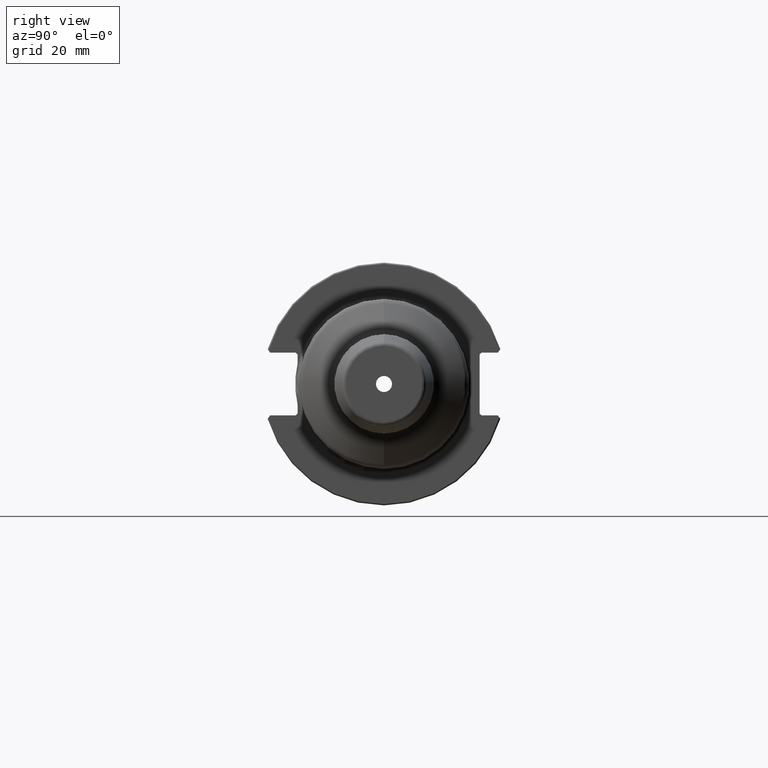
[diagram: clean part render]
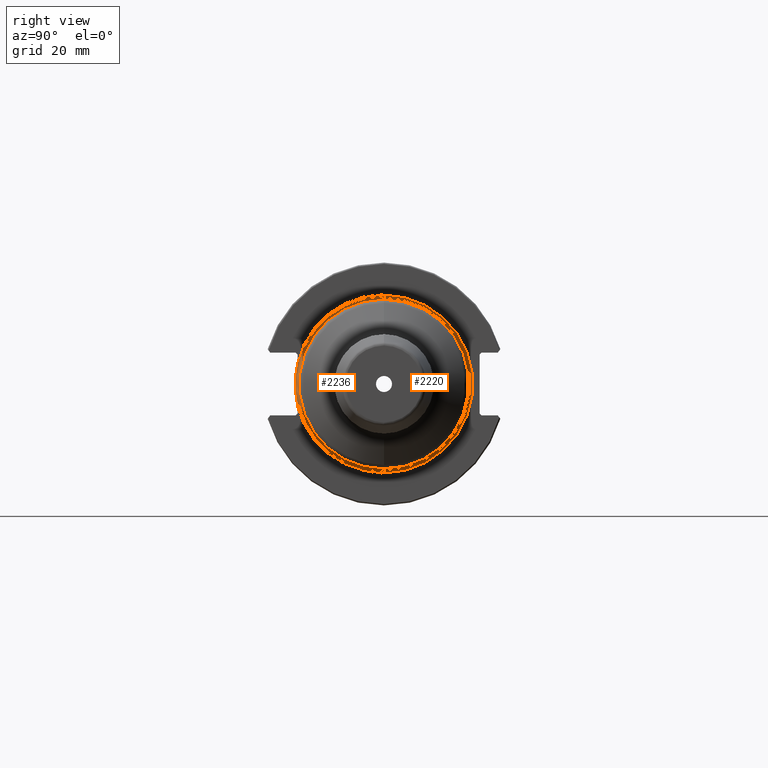
[diagram: same view with one multi-face feature highlighted, each face labeled with its STEP entity id]
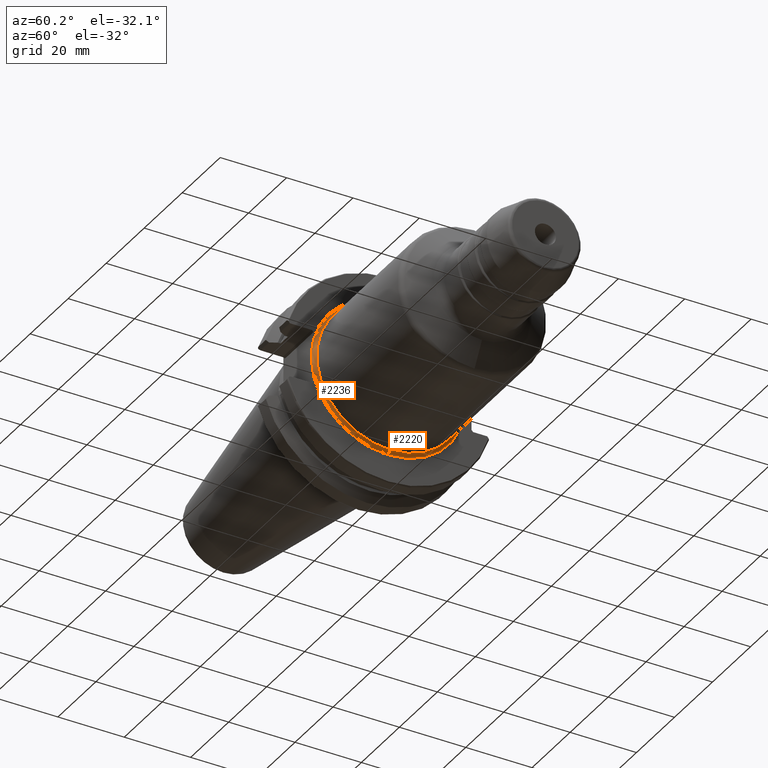
[diagram: same view with one multi-face feature highlighted, each face labeled with its STEP entity id]
A machine part, right view. The highlighted faces form ONE feature: a constant-radius fillet chain: 2 tangent blend faces with common blend radius 1 mm. The faces share edges in the B-rep.
A second angle (auxiliary view) of the same feature is appended — it is thin or edge-on in the first view.
Their STEP definitions:
[1] entity #2236 (Torus):
#207=CARTESIAN_POINT('',(1.9075E1,0.E0,0.E0));
#208=DIRECTION('',(1.E0,0.E0,0.E0));
#209=DIRECTION('',(0.E0,0.E0,1.E0));
#210=AXIS2_PLACEMENT_3D('',#207,#208,#209);
#212=CARTESIAN_POINT('',(1.9075E1,0.E0,0.E0));
#213=DIRECTION('',(1.E0,0.E0,0.E0));
#214=DIRECTION('',(0.E0,-9.730893433800E-1,-2.304281445491E-1));
#215=AXIS2_PLACEMENT_3D('',#212,#213,#214);
#222=CARTESIAN_POINT('',(2.0075E1,0.E0,2.3225E1));
#223=DIRECTION('',(0.E0,1.E0,0.E0));
#224=DIRECTION('',(0.E0,0.E0,-1.E0));
#225=AXIS2_PLACEMENT_3D('',#222,#223,#224);
#227=CARTESIAN_POINT('',(2.0075E1,0.E0,0.E0));
#228=DIRECTION('',(-1.E0,0.E0,0.E0));
#229=DIRECTION('',(0.E0,0.E0,-1.E0));
#230=AXIS2_PLACEMENT_3D('',#227,#228,#229);
#232=CARTESIAN_POINT('',(2.0075E1,0.E0,-2.3225E1));
#233=DIRECTION('',(0.E0,-1.E0,0.E0));
#234=DIRECTION('',(0.E0,0.E0,1.E0));
#235=AXIS2_PLACEMENT_3D('',#232,#233,#234);
#895=CARTESIAN_POINT('',(1.9075E1,0.E0,0.E0));
#896=DIRECTION('',(-1.E0,0.E0,0.E0));
#897=DIRECTION('',(0.E0,-9.730893433800E-1,-2.304281445491E-1));
#898=AXIS2_PLACEMENT_3D('',#895,#896,#897);
#1788=CARTESIAN_POINT('',(2.0075E1,0.E0,-2.2225E1));
#1789=VERTEX_POINT('',#1788);
#1846=CARTESIAN_POINT('',(2.0075E1,0.E0,2.2225E1));
#1847=VERTEX_POINT('',#1846);
#1848=CARTESIAN_POINT('',(1.9075E1,-2.26E1,5.351693657152E0));
#1849=CARTESIAN_POINT('',(1.9075E1,-2.26E1,-5.351693657152E0));
#1850=VERTEX_POINT('',#1848);
#1851=VERTEX_POINT('',#1849);
#1852=CARTESIAN_POINT('',(1.9075E1,0.E0,-2.3225E1));
#1853=CARTESIAN_POINT('',(1.9075E1,0.E0,2.3225E1));
#1854=VERTEX_POINT('',#1852);
#1855=VERTEX_POINT('',#1853);
#2221=CARTESIAN_POINT('',(2.0075E1,0.E0,0.E0));
#2222=DIRECTION('',(1.E0,0.E0,0.E0));
#2223=DIRECTION('',(0.E0,0.E0,1.E0));
#2224=AXIS2_PLACEMENT_3D('',#2221,#2222,#2223);
#2225=TOROIDAL_SURFACE('',#2224,2.3225E1,1.E0);
#2226=ORIENTED_EDGE('',*,*,#2166,.F.);
#2227=ORIENTED_EDGE('',*,*,#2216,.F.);
#2229=ORIENTED_EDGE('',*,*,#2228,.F.);
#2230=ORIENTED_EDGE('',*,*,#2212,.T.);
#2231=ORIENTED_EDGE('',*,*,#2201,.F.);
#2233=ORIENTED_EDGE('',*,*,#2232,.T.);
#2234=EDGE_LOOP('',(#2226,#2227,#2229,#2230,#2231,#2233));
#2235=FACE_OUTER_BOUND('',#2234,.F.);
#2236=ADVANCED_FACE('',(#2235),#2225,.F.);
#211=CIRCLE('',#210,2.3225E1);
#216=CIRCLE('',#215,2.3225E1);
#226=CIRCLE('',#225,1.E0);
#231=CIRCLE('',#230,2.2225E1);
#236=CIRCLE('',#235,1.E0);
#899=CIRCLE('',#898,2.3225E1);
#2166=EDGE_CURVE('',#1855,#1850,#211,.T.);
#2201=EDGE_CURVE('',#1851,#1854,#216,.T.);
#2212=EDGE_CURVE('',#1789,#1854,#236,.T.);
#2216=EDGE_CURVE('',#1847,#1855,#226,.T.);
#2228=EDGE_CURVE('',#1789,#1847,#231,.T.);
#2232=EDGE_CURVE('',#1851,#1850,#899,.T.);
[2] entity #2220 (Torus):
#202=CARTESIAN_POINT('',(1.9075E1,0.E0,0.E0));
#203=DIRECTION('',(1.E0,0.E0,0.E0));
#204=DIRECTION('',(0.E0,0.E0,-1.E0));
#205=AXIS2_PLACEMENT_3D('',#202,#203,#204);
#217=CARTESIAN_POINT('',(2.0075E1,0.E0,0.E0));
#218=DIRECTION('',(1.E0,0.E0,0.E0));
#219=DIRECTION('',(0.E0,0.E0,-1.E0));
#220=AXIS2_PLACEMENT_3D('',#217,#218,#219);
#222=CARTESIAN_POINT('',(2.0075E1,0.E0,2.3225E1));
#223=DIRECTION('',(0.E0,1.E0,0.E0));
#224=DIRECTION('',(0.E0,0.E0,-1.E0));
#225=AXIS2_PLACEMENT_3D('',#222,#223,#224);
#232=CARTESIAN_POINT('',(2.0075E1,0.E0,-2.3225E1));
#233=DIRECTION('',(0.E0,-1.E0,0.E0));
#234=DIRECTION('',(0.E0,0.E0,1.E0));
#235=AXIS2_PLACEMENT_3D('',#232,#233,#234);
#1788=CARTESIAN_POINT('',(2.0075E1,0.E0,-2.2225E1));
#1789=VERTEX_POINT('',#1788);
#1846=CARTESIAN_POINT('',(2.0075E1,0.E0,2.2225E1));
#1847=VERTEX_POINT('',#1846);
#1852=CARTESIAN_POINT('',(1.9075E1,0.E0,-2.3225E1));
#1853=CARTESIAN_POINT('',(1.9075E1,0.E0,2.3225E1));
#1854=VERTEX_POINT('',#1852);
#1855=VERTEX_POINT('',#1853);
#2206=CARTESIAN_POINT('',(2.0075E1,0.E0,0.E0));
#2207=DIRECTION('',(1.E0,0.E0,0.E0));
#2208=DIRECTION('',(0.E0,0.E0,1.E0));
#2209=AXIS2_PLACEMENT_3D('',#2206,#2207,#2208);
#2210=TOROIDAL_SURFACE('',#2209,2.3225E1,1.E0);
#2211=ORIENTED_EDGE('',*,*,#2164,.F.);
#2213=ORIENTED_EDGE('',*,*,#2212,.F.);
#2215=ORIENTED_EDGE('',*,*,#2214,.T.);
#2217=ORIENTED_EDGE('',*,*,#2216,.T.);
#2218=EDGE_LOOP('',(#2211,#2213,#2215,#2217));
#2219=FACE_OUTER_BOUND('',#2218,.F.);
#2220=ADVANCED_FACE('',(#2219),#2210,.F.);
#206=CIRCLE('',#205,2.3225E1);
#221=CIRCLE('',#220,2.2225E1);
#226=CIRCLE('',#225,1.E0);
#236=CIRCLE('',#235,1.E0);
#2164=EDGE_CURVE('',#1854,#1855,#206,.T.);
#2212=EDGE_CURVE('',#1789,#1854,#236,.T.);
#2214=EDGE_CURVE('',#1789,#1847,#221,.T.);
#2216=EDGE_CURVE('',#1847,#1855,#226,.T.);